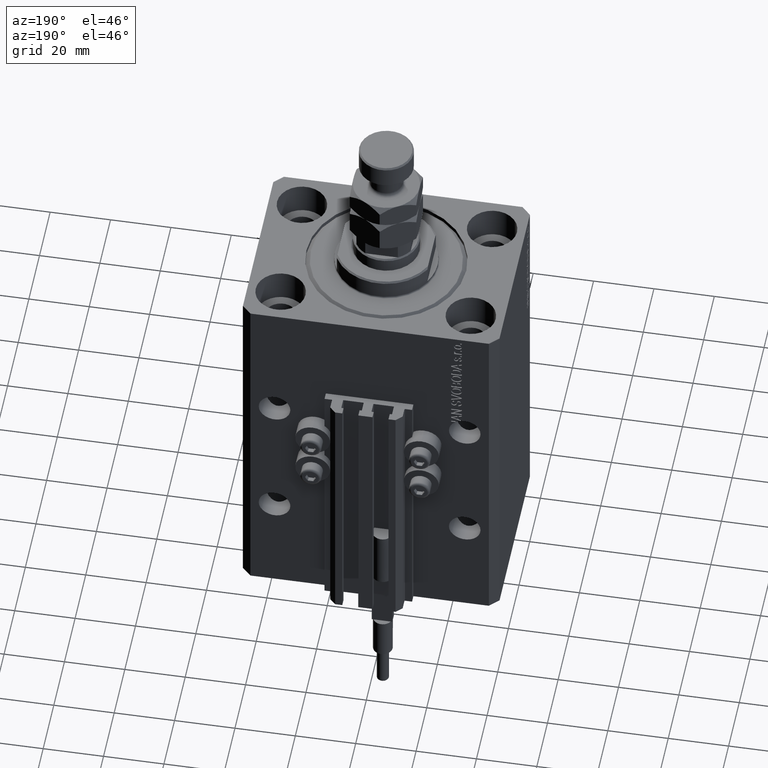
[diagram: clean part render]
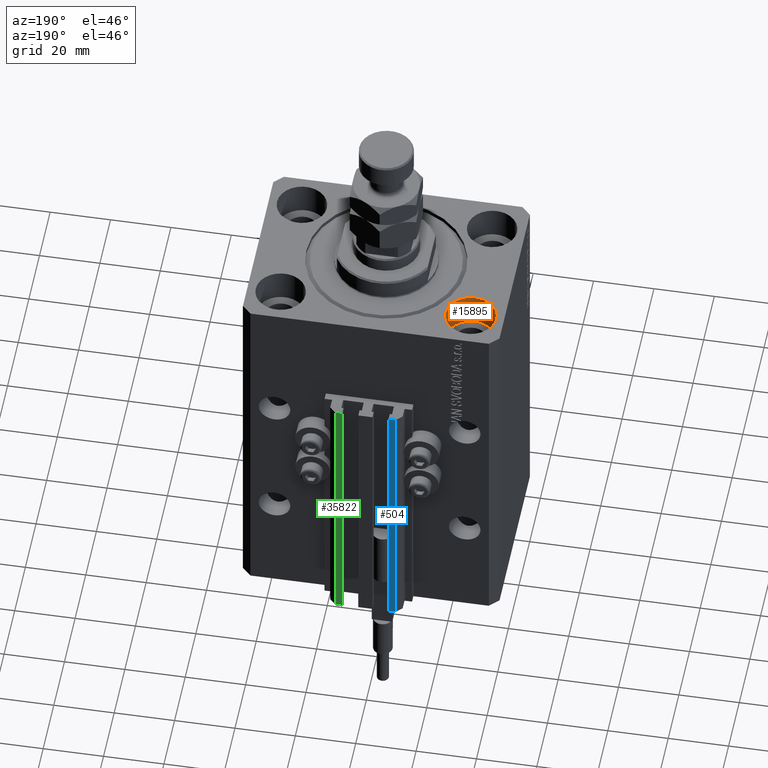
[diagram: same view with three faces highlighted in distinct colors, each labeled with its STEP entity id]
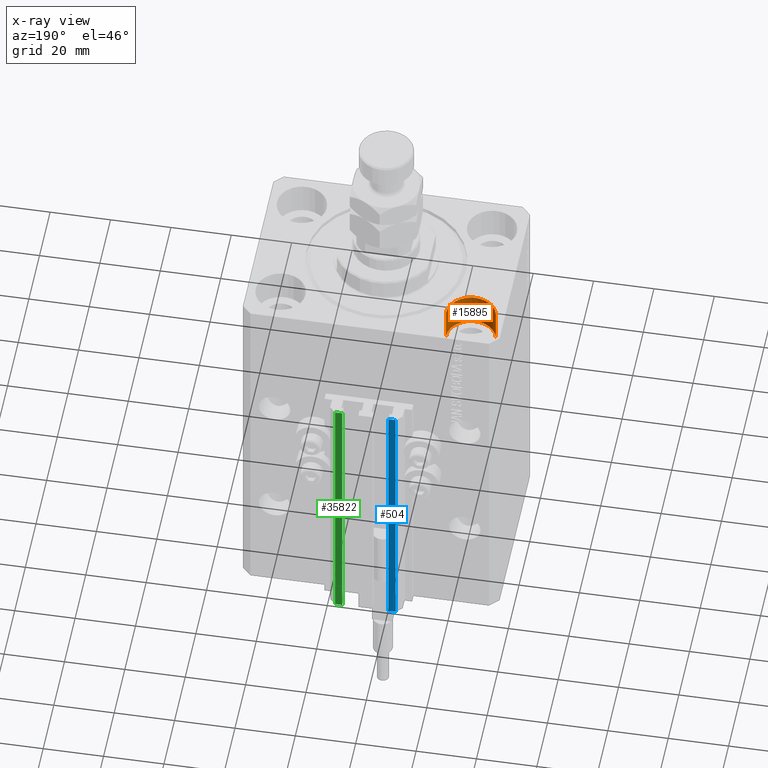
[diagram: x-ray of the same camera — body ghosted, the three highlighted faces saturated]
A machine part, auxiliary view with three faces highlighted in distinct colors.
The next image is the same camera in x-ray (body ghosted, the three faces saturated) — at least one of them is partly hidden behind the body in this view.
Their STEP definitions:

[orange] entity #15895 — the highlighted cylindrical surface (edge-blend (fillet) strip) has radius 8.25 mm, axis along (0, 0, 1).
#116 = CARTESIAN_POINT ( 'NONE',  ( -31.50000000000000000, 20.00000000000000000, -11.00000000000000000 ) ) ;
#457 = CARTESIAN_POINT ( 'NONE',  ( -39.75000000000000000, 20.00000000000000000, -11.00000000000000000 ) ) ;
#2350 = DIRECTION ( 'NONE',  ( -0.000000000000000000, -0.000000000000000000, 1.000000000000000000 ) ) ;
#3961 = VECTOR ( 'NONE', #46698, 1000.000000000000000 ) ;
#4939 = EDGE_CURVE ( 'NONE', #49715, #13058, #35247, .T. ) ;
#5394 = CARTESIAN_POINT ( 'NONE',  ( -31.50000000000000000, 20.00000000000000000, 0.000000000000000000 ) ) ;
#6648 = EDGE_CURVE ( 'NONE', #10472, #17914, #39404, .T. ) ;
#6944 = LINE ( 'NONE', #37395, #20355 ) ;
#10472 = VERTEX_POINT ( 'NONE', #35616 ) ;
#11386 = CARTESIAN_POINT ( 'NONE',  ( -23.25000000000000000, 20.00000000000000000, -11.00000000000000000 ) ) ;
#12370 = DIRECTION ( 'NONE',  ( -0.000000000000000000, -0.000000000000000000, 1.000000000000000000 ) ) ;
#12911 = DIRECTION ( 'NONE',  ( 1.000000000000000000, 0.000000000000000000, 0.000000000000000000 ) ) ;
#13058 = VERTEX_POINT ( 'NONE', #26679 ) ;
#13161 = AXIS2_PLACEMENT_3D ( 'NONE', #34962, #23943, #12911 ) ;
#15802 = ORIENTED_EDGE ( 'NONE', *, *, #4939, .F. ) ;
#15895 = ADVANCED_FACE ( 'NONE', ( #15978 ), #31832, .F. ) ;
#15978 = FACE_OUTER_BOUND ( 'NONE', #26898, .T. ) ;
#17147 = DIRECTION ( 'NONE',  ( 1.000000000000000000, 0.000000000000000000, 0.000000000000000000 ) ) ;
#17914 = VERTEX_POINT ( 'NONE', #20524 ) ;
#20355 = VECTOR ( 'NONE', #2350, 1000.000000000000000 ) ;
#20524 = CARTESIAN_POINT ( 'NONE',  ( -23.25000000000000000, 20.00000000000000000, 0.000000000000000000 ) ) ;
#21238 = DIRECTION ( 'NONE',  ( 0.000000000000000000, 0.000000000000000000, 1.000000000000000000 ) ) ;
#22867 = ORIENTED_EDGE ( 'NONE', *, *, #36207, .F. ) ;
#23943 = DIRECTION ( 'NONE',  ( 0.000000000000000000, 0.000000000000000000, 1.000000000000000000 ) ) ;
#26679 = CARTESIAN_POINT ( 'NONE',  ( -23.25000000000000000, 20.00000000000000000, -11.00000000000000000 ) ) ;
#26898 = EDGE_LOOP ( 'NONE', ( #15802, #42091, #34414, #22867 ) ) ;
#30612 = AXIS2_PLACEMENT_3D ( 'NONE', #116, #12370, #39260 ) ;
#31832 = CYLINDRICAL_SURFACE ( 'NONE', #30612, 8.250000000000000000 ) ;
#34414 = ORIENTED_EDGE ( 'NONE', *, *, #6648, .T. ) ;
#34704 = EDGE_CURVE ( 'NONE', #49715, #10472, #6944, .T. ) ;
#34962 = CARTESIAN_POINT ( 'NONE',  ( -31.50000000000000000, 20.00000000000000000, -11.00000000000000000 ) ) ;
#35183 = LINE ( 'NONE', #11386, #3961 ) ;
#35247 = CIRCLE ( 'NONE', #13161, 8.250000000000000000 ) ;
#35616 = CARTESIAN_POINT ( 'NONE',  ( -39.75000000000000000, 20.00000000000000000, 0.000000000000000000 ) ) ;
#36207 = EDGE_CURVE ( 'NONE', #13058, #17914, #35183, .T. ) ;
#37395 = CARTESIAN_POINT ( 'NONE',  ( -39.75000000000000000, 20.00000000000000000, -11.00000000000000000 ) ) ;
#39260 = DIRECTION ( 'NONE',  ( 1.000000000000000000, 0.000000000000000000, 0.000000000000000000 ) ) ;
#39404 = CIRCLE ( 'NONE', #47538, 8.250000000000000000 ) ;
#42091 = ORIENTED_EDGE ( 'NONE', *, *, #34704, .T. ) ;
#46698 = DIRECTION ( 'NONE',  ( -0.000000000000000000, -0.000000000000000000, 1.000000000000000000 ) ) ;
#47538 = AXIS2_PLACEMENT_3D ( 'NONE', #5394, #21238, #17147 ) ;
#49715 = VERTEX_POINT ( 'NONE', #457 ) ;

[blue] entity #504 — the highlighted planar face has unit normal (0, 1, 0).
#157 = EDGE_CURVE ( 'NONE', #30527, #39945, #23920, .T. ) ;
#239 = ORIENTED_EDGE ( 'NONE', *, *, #157, .F. ) ;
#504 = ADVANCED_FACE ( 'NONE', ( #39214 ), #50466, .T. ) ;
#5119 = LINE ( 'NONE', #8444, #48729 ) ;
#6081 = CARTESIAN_POINT ( 'NONE',  ( -7.650000000000002132, 39.49999999999999289, -123.0000000000000000 ) ) ;
#8200 = CARTESIAN_POINT ( 'NONE',  ( -7.650000000000002132, 39.49999999999999289, -123.0000000000000000 ) ) ;
#8444 = CARTESIAN_POINT ( 'NONE',  ( -10.00000000000000000, 39.49999999999999289, -123.0000000000000000 ) ) ;
#10103 = EDGE_CURVE ( 'NONE', #17900, #45253, #48802, .T. ) ;
#11603 = VECTOR ( 'NONE', #43765, 1000.000000000000000 ) ;
#11634 = CARTESIAN_POINT ( 'NONE',  ( -7.650000000000002132, 39.49999999999999289, -33.00000000000000000 ) ) ;
#15928 = DIRECTION ( 'NONE',  ( 0.000000000000000000, 1.000000000000000000, -0.000000000000000000 ) ) ;
#17900 = VERTEX_POINT ( 'NONE', #34877 ) ;
#19835 = DIRECTION ( 'NONE',  ( -1.000000000000000000, 0.000000000000000000, 0.000000000000000000 ) ) ;
#23920 = LINE ( 'NONE', #11634, #34340 ) ;
#24062 = LINE ( 'NONE', #8200, #11603 ) ;
#24895 = CARTESIAN_POINT ( 'NONE',  ( -10.00000000000000000, 39.49999999999999289, -33.00000000000000000 ) ) ;
#25052 = DIRECTION ( 'NONE',  ( 0.000000000000000000, 0.000000000000000000, 1.000000000000000000 ) ) ;
#26003 = ORIENTED_EDGE ( 'NONE', *, *, #44275, .F. ) ;
#27925 = CARTESIAN_POINT ( 'NONE',  ( -10.00000000000000000, 39.49999999999999289, -123.0000000000000000 ) ) ;
#28300 = EDGE_LOOP ( 'NONE', ( #239, #26003, #38499, #31168 ) ) ;
#28849 = EDGE_CURVE ( 'NONE', #45253, #39945, #5119, .T. ) ;
#29735 = VECTOR ( 'NONE', #43973, 1000.000000000000000 ) ;
#30527 = VERTEX_POINT ( 'NONE', #30807 ) ;
#30807 = CARTESIAN_POINT ( 'NONE',  ( -7.650000000000002132, 39.49999999999999289, -33.00000000000000000 ) ) ;
#31168 = ORIENTED_EDGE ( 'NONE', *, *, #28849, .T. ) ;
#31537 = DIRECTION ( 'NONE',  ( 0.000000000000000000, 0.000000000000000000, 1.000000000000000000 ) ) ;
#31787 = CARTESIAN_POINT ( 'NONE',  ( -7.650000000000002132, 39.49999999999999289, -123.0000000000000000 ) ) ;
#34340 = VECTOR ( 'NONE', #19835, 1000.000000000000000 ) ;
#34877 = CARTESIAN_POINT ( 'NONE',  ( -7.650000000000002132, 39.49999999999999289, -123.0000000000000000 ) ) ;
#37659 = AXIS2_PLACEMENT_3D ( 'NONE', #31787, #15928, #31537 ) ;
#38499 = ORIENTED_EDGE ( 'NONE', *, *, #10103, .T. ) ;
#39214 = FACE_OUTER_BOUND ( 'NONE', #28300, .T. ) ;
#39945 = VERTEX_POINT ( 'NONE', #24895 ) ;
#43765 = DIRECTION ( 'NONE',  ( 0.000000000000000000, 0.000000000000000000, 1.000000000000000000 ) ) ;
#43973 = DIRECTION ( 'NONE',  ( -1.000000000000000000, 0.000000000000000000, 0.000000000000000000 ) ) ;
#44275 = EDGE_CURVE ( 'NONE', #17900, #30527, #24062, .T. ) ;
#45253 = VERTEX_POINT ( 'NONE', #27925 ) ;
#48729 = VECTOR ( 'NONE', #25052, 1000.000000000000000 ) ;
#48802 = LINE ( 'NONE', #6081, #29735 ) ;
#50466 = PLANE ( 'NONE',  #37659 ) ;

[green] entity #35822 — the highlighted planar face has unit normal (0, 1, 0).
#440 = DIRECTION ( 'NONE',  ( 0.000000000000000000, 1.000000000000000000, -0.000000000000000000 ) ) ;
#2186 = VERTEX_POINT ( 'NONE', #7392 ) ;
#2345 = EDGE_LOOP ( 'NONE', ( #36515, #14540, #45210, #49461 ) ) ;
#3266 = CARTESIAN_POINT ( 'NONE',  ( 9.999999999999998224, 39.50000000000002132, -123.0000000000000000 ) ) ;
#4854 = CARTESIAN_POINT ( 'NONE',  ( 7.649999999999998579, 39.50000000000002132, -123.0000000000000000 ) ) ;
#5980 = LINE ( 'NONE', #33365, #7034 ) ;
#6486 = VECTOR ( 'NONE', #35452, 1000.000000000000000 ) ;
#7034 = VECTOR ( 'NONE', #11324, 1000.000000000000000 ) ;
#7392 = CARTESIAN_POINT ( 'NONE',  ( 7.649999999999998579, 39.50000000000002132, -33.00000000000000000 ) ) ;
#9579 = VECTOR ( 'NONE', #34469, 1000.000000000000000 ) ;
#11324 = DIRECTION ( 'NONE',  ( 0.000000000000000000, 0.000000000000000000, 1.000000000000000000 ) ) ;
#14540 = ORIENTED_EDGE ( 'NONE', *, *, #27428, .F. ) ;
#16319 = CARTESIAN_POINT ( 'NONE',  ( 9.999999999999998224, 39.50000000000002132, -33.00000000000000000 ) ) ;
#18877 = DIRECTION ( 'NONE',  ( 0.000000000000000000, 0.000000000000000000, 1.000000000000000000 ) ) ;
#19848 = CARTESIAN_POINT ( 'NONE',  ( 9.999999999999998224, 39.50000000000002132, -33.00000000000000000 ) ) ;
#19897 = PLANE ( 'NONE',  #29269 ) ;
#22401 = EDGE_CURVE ( 'NONE', #28299, #23981, #38311, .T. ) ;
#23730 = CARTESIAN_POINT ( 'NONE',  ( 9.999999999999998224, 39.50000000000002132, -123.0000000000000000 ) ) ;
#23981 = VERTEX_POINT ( 'NONE', #4854 ) ;
#26936 = VECTOR ( 'NONE', #50114, 1000.000000000000000 ) ;
#27428 = EDGE_CURVE ( 'NONE', #28299, #31326, #5980, .T. ) ;
#28299 = VERTEX_POINT ( 'NONE', #49470 ) ;
#29269 = AXIS2_PLACEMENT_3D ( 'NONE', #23730, #440, #18877 ) ;
#31326 = VERTEX_POINT ( 'NONE', #16319 ) ;
#31657 = FACE_OUTER_BOUND ( 'NONE', #2345, .T. ) ;
#33365 = CARTESIAN_POINT ( 'NONE',  ( 9.999999999999998224, 39.50000000000002132, -123.0000000000000000 ) ) ;
#34252 = EDGE_CURVE ( 'NONE', #31326, #2186, #43131, .T. ) ;
#34469 = DIRECTION ( 'NONE',  ( -1.000000000000000000, 0.000000000000000000, 0.000000000000000000 ) ) ;
#35030 = CARTESIAN_POINT ( 'NONE',  ( 7.649999999999998579, 39.50000000000002132, -123.0000000000000000 ) ) ;
#35452 = DIRECTION ( 'NONE',  ( -1.000000000000000000, 0.000000000000000000, 0.000000000000000000 ) ) ;
#35822 = ADVANCED_FACE ( 'NONE', ( #31657 ), #19897, .T. ) ;
#36515 = ORIENTED_EDGE ( 'NONE', *, *, #34252, .F. ) ;
#38311 = LINE ( 'NONE', #3266, #9579 ) ;
#38460 = EDGE_CURVE ( 'NONE', #23981, #2186, #49613, .T. ) ;
#43131 = LINE ( 'NONE', #19848, #6486 ) ;
#45210 = ORIENTED_EDGE ( 'NONE', *, *, #22401, .T. ) ;
#49461 = ORIENTED_EDGE ( 'NONE', *, *, #38460, .T. ) ;
#49470 = CARTESIAN_POINT ( 'NONE',  ( 9.999999999999998224, 39.50000000000002132, -123.0000000000000000 ) ) ;
#49613 = LINE ( 'NONE', #35030, #26936 ) ;
#50114 = DIRECTION ( 'NONE',  ( 0.000000000000000000, 0.000000000000000000, 1.000000000000000000 ) ) ;